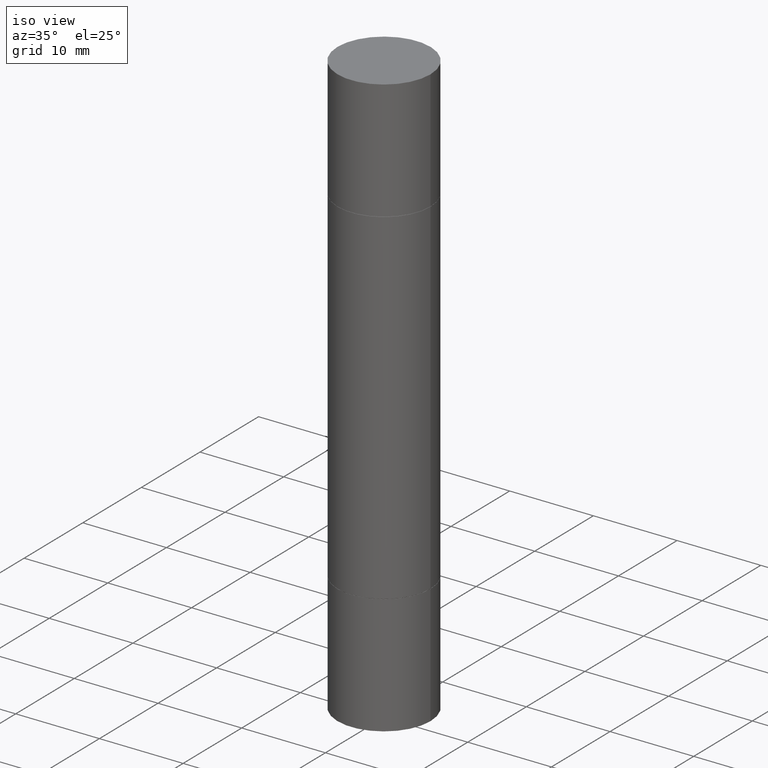
[diagram: clean part render]
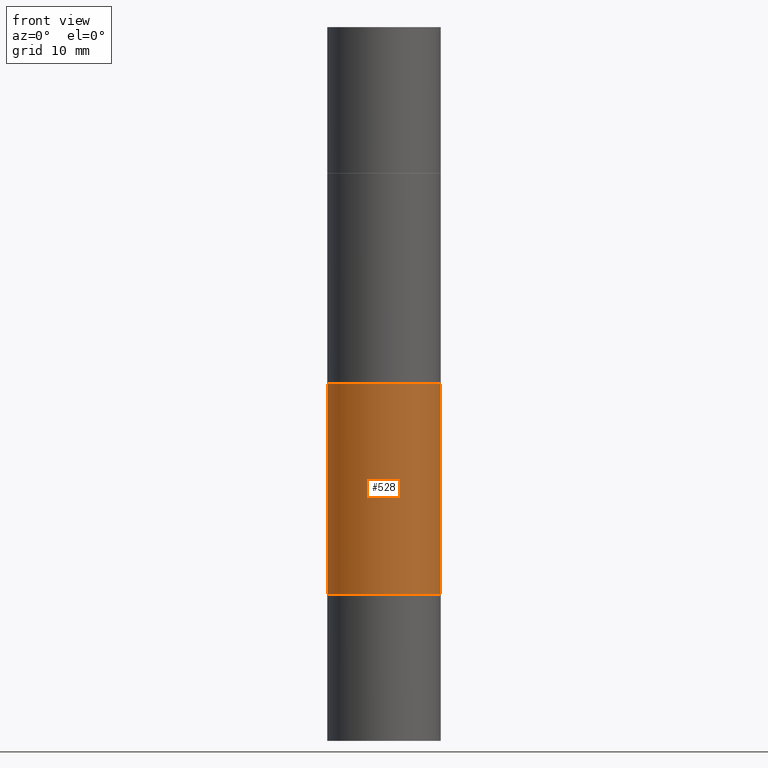
[diagram: tour spotlight — one face highlighted and labeled with its STEP entity id]
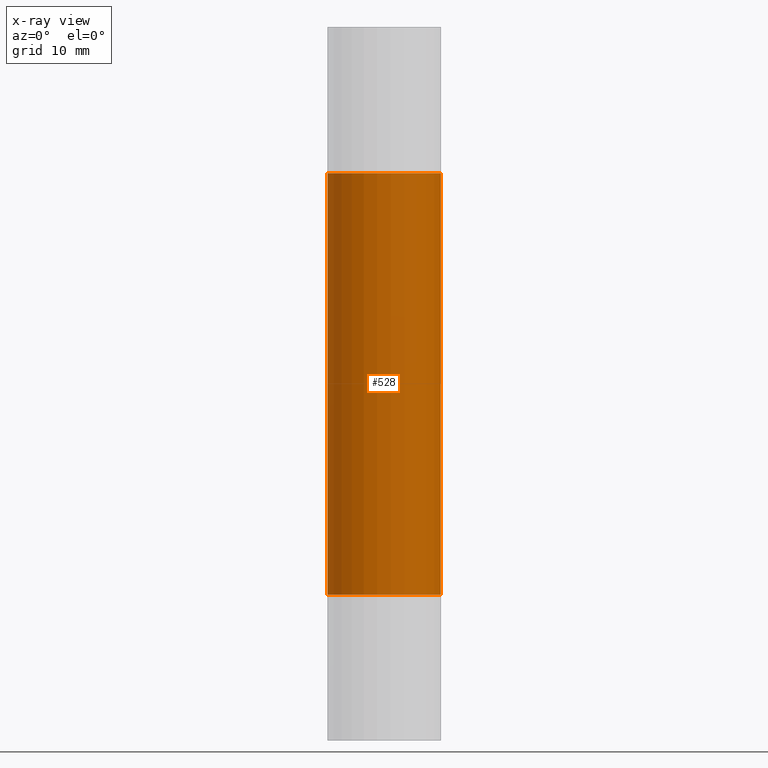
[diagram: x-ray of the same camera — body ghosted, this tour face saturated]
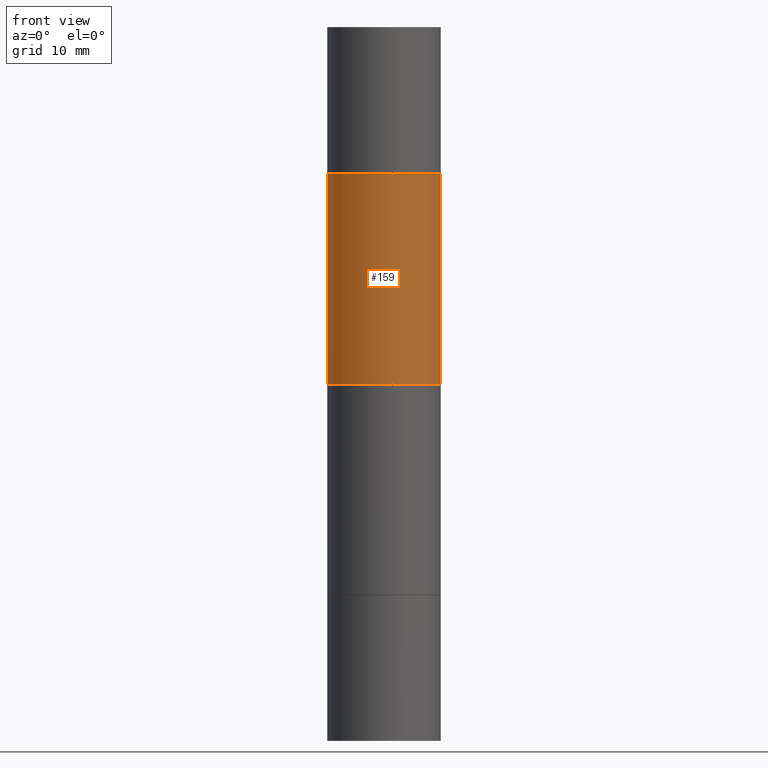
[diagram: tour spotlight — one face highlighted and labeled with its STEP entity id]
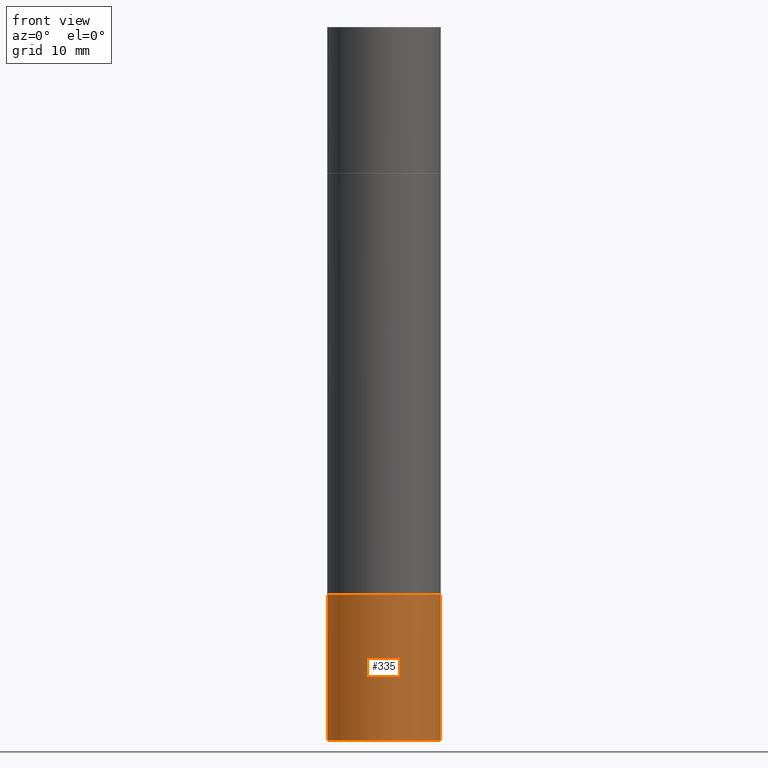
[diagram: tour spotlight — one face highlighted and labeled with its STEP entity id]
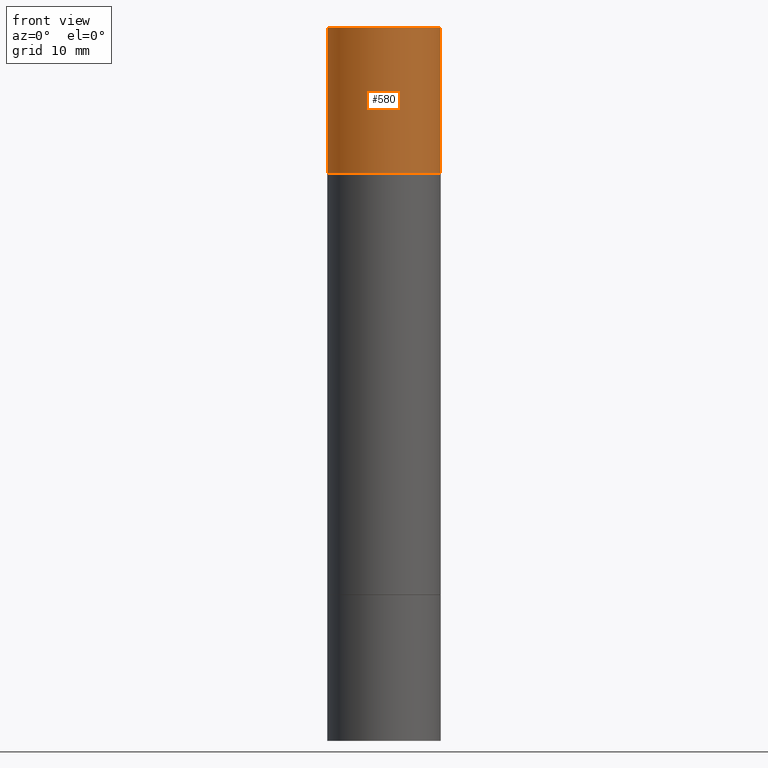
[diagram: tour spotlight — one face highlighted and labeled with its STEP entity id]
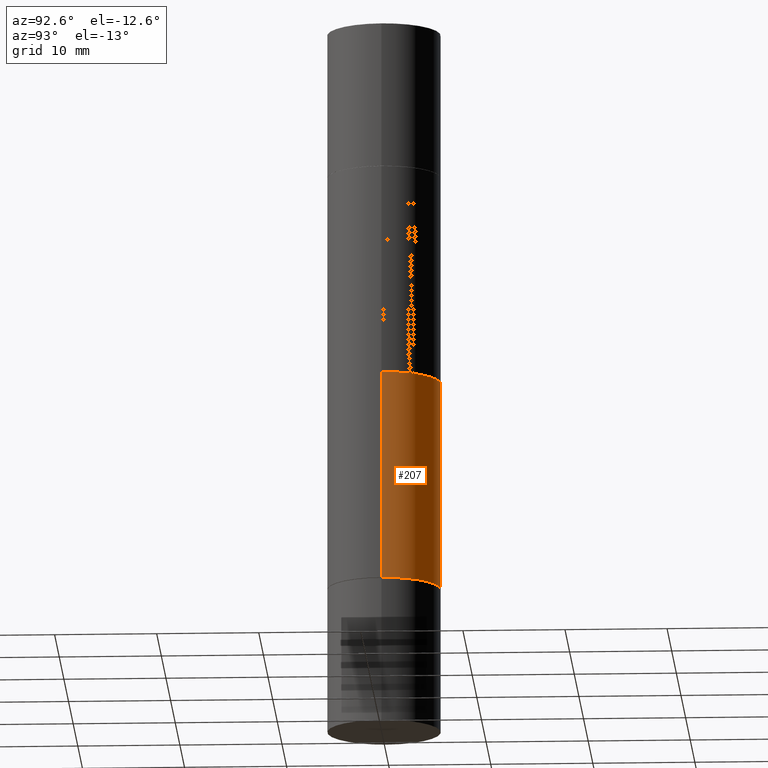
[diagram: tour spotlight — one face highlighted and labeled with its STEP entity id]
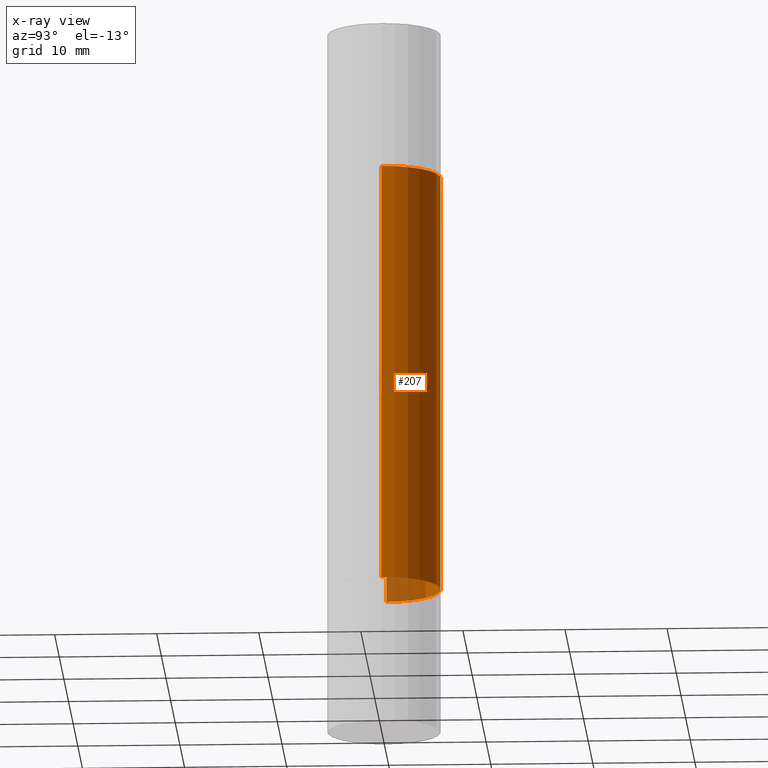
[diagram: x-ray of the same camera — body ghosted, this tour face saturated]
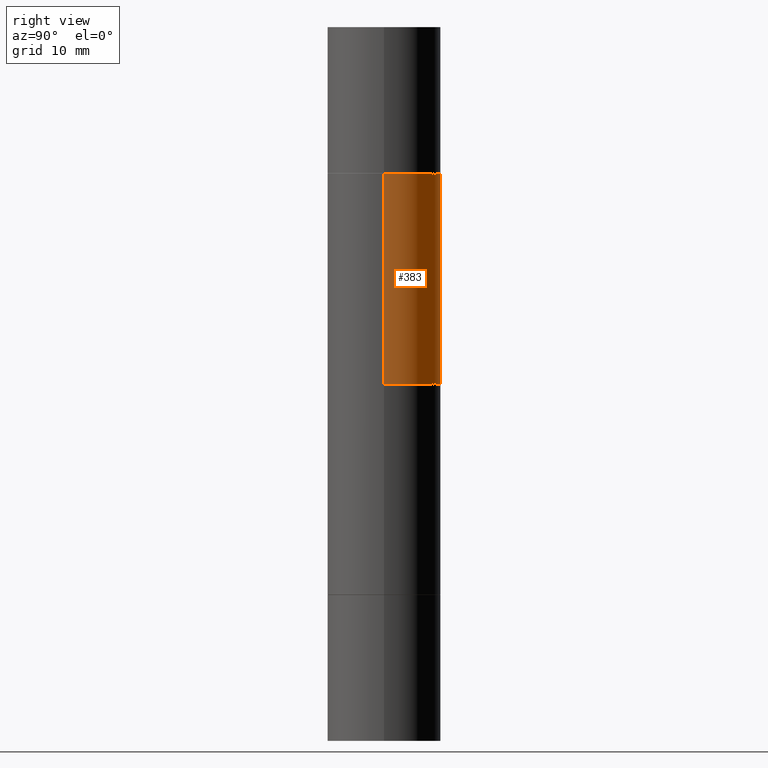
[diagram: tour spotlight — one face highlighted and labeled with its STEP entity id]
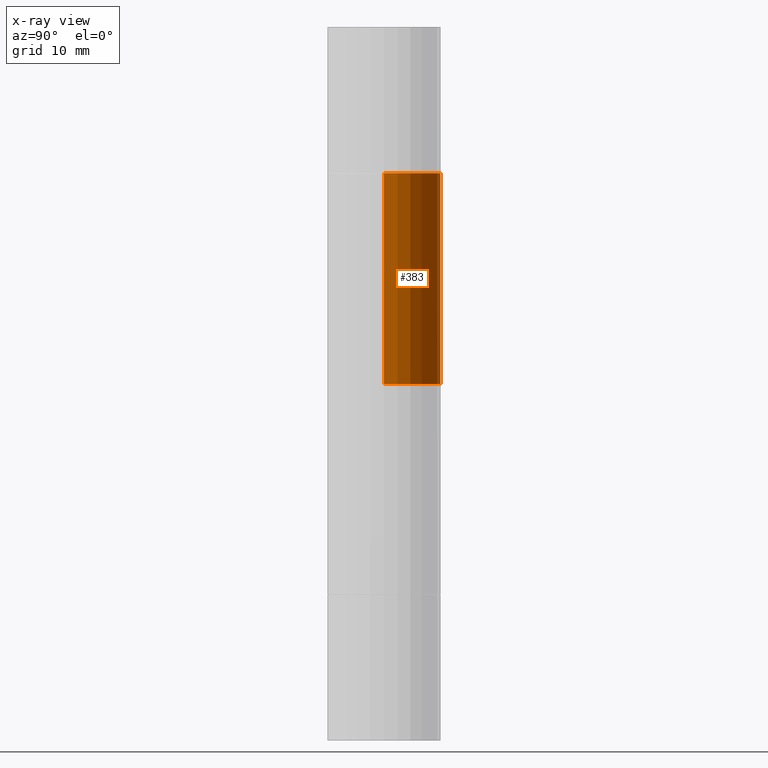
[diagram: x-ray of the same camera — body ghosted, this tour face saturated]
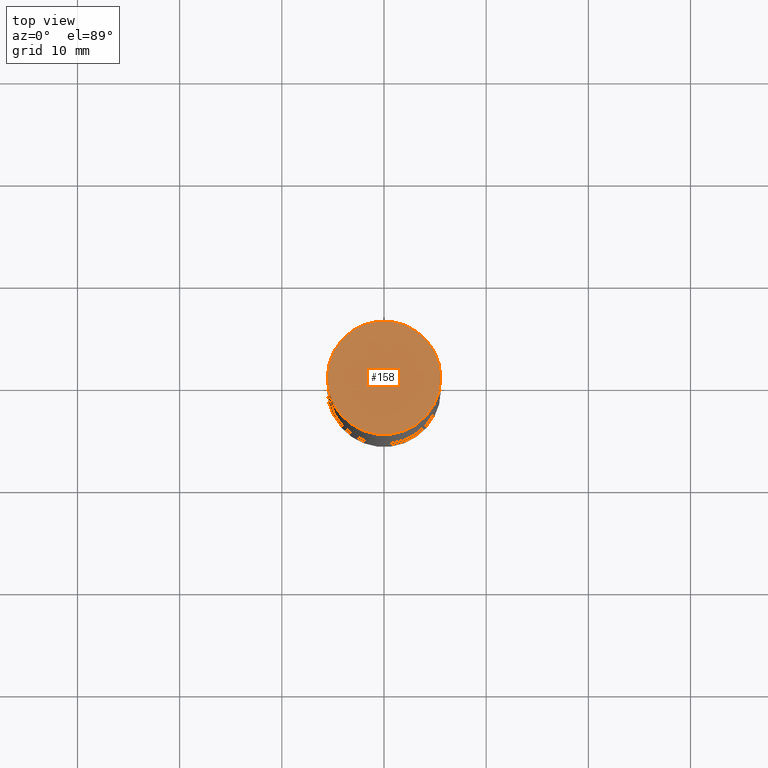
[diagram: tour spotlight — one face highlighted and labeled with its STEP entity id]
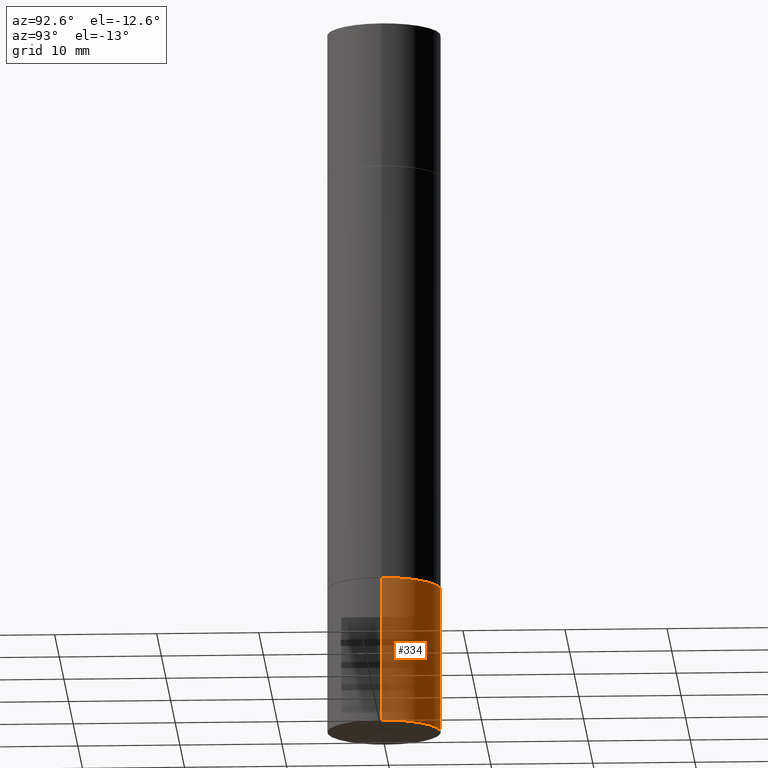
[diagram: tour spotlight — one face highlighted and labeled with its STEP entity id]
A machine part: a face-by-face anatomy tour. The part has 26 B-rep faces; the first image is the clean iso view, then the 8 largest visible faces are spotlighted one at a time (largest first), each with its STEP entity span.

Face 1 — front view, entity #528. An x-ray twin of the same camera follows (body ghosted, this face saturated) — the face is partly hidden behind the body. In plain terms, the highlighted cylindrical surface (partial cylindrical patch) has radius 5.5562 mm, axis along (-0, -0, -1).
Definition (entity closure, byte-faithful):
#17 = VERTEX_POINT ( 'NONE', #317 ) ;
#22 = VERTEX_POINT ( 'NONE', #476 ) ;
#27 = DIRECTION ( 'NONE',  ( 1.000000000000000000, -6.982962677686267499E-15, 0.000000000000000000 ) ) ;
#33 = VECTOR ( 'NONE', #253, 39.37007874015748143 ) ;
#37 = EDGE_CURVE ( 'NONE', #391, #645, #321, .T. ) ;
#46 = CARTESIAN_POINT ( 'NONE',  ( 0.2187499999999998612, -1.113103424253685260E-14, -2.749999999999999556 ) ) ;
#68 = CYLINDRICAL_SURFACE ( 'NONE', #74, 0.2187499999999998612 ) ;
#69 = CARTESIAN_POINT ( 'NONE',  ( -0.2187499999999998612, -8.102777219780461591E-15, -2.749999999999999556 ) ) ;
#74 = AXIS2_PLACEMENT_3D ( 'NONE', #495, #229, #27 ) ;
#83 = DIRECTION ( 'NONE',  ( -2.445468806185136877E-29, -3.492890411551753071E-15, -1.000000000000000000 ) ) ;
#91 = DIRECTION ( 'NONE',  ( -2.445468806185136597E-29, 3.491481338843145583E-15, 1.000000000000000000 ) ) ;
#118 = AXIS2_PLACEMENT_3D ( 'NONE', #568, #91, #514 ) ;
#136 = EDGE_CURVE ( 'NONE', #17, #22, #358, .T. ) ;
#141 = CARTESIAN_POINT ( 'NONE',  ( 5.348240279126892383E-29, -1.964559826729300003E-15, -0.5629999999999997229 ) ) ;
#162 = ORIENTED_EDGE ( 'NONE', *, *, #313, .T. ) ;
#172 = ORIENTED_EDGE ( 'NONE', *, *, #37, .F. ) ;
#195 = DIRECTION ( 'NONE',  ( 1.000000000000000000, -6.982962677686266711E-15, 0.000000000000000000 ) ) ;
#202 = CARTESIAN_POINT ( 'NONE',  ( 0.2187499999999999445, -3.492082912473170057E-15, -0.5629999999999997229 ) ) ;
#224 = LINE ( 'NONE', #69, #625 ) ;
#229 = DIRECTION ( 'NONE',  ( -2.445468806185136597E-29, -3.492890411551752677E-15, -1.000000000000000000 ) ) ;
#236 = EDGE_LOOP ( 'NONE', ( #172, #162, #536, #601 ) ) ;
#253 = DIRECTION ( 'NONE',  ( -2.445468806185136877E-29, -3.492890411551753071E-15, -1.000000000000000000 ) ) ;
#261 = AXIS2_PLACEMENT_3D ( 'NONE', #141, #365, #195 ) ;
#313 = EDGE_CURVE ( 'NONE', #391, #17, #224, .T. ) ;
#317 = CARTESIAN_POINT ( 'NONE',  ( -0.2187499999999999445, -3.300052903896800034E-15, -2.186999999999999833 ) ) ;
#321 = CIRCLE ( 'NONE', #261, 0.2187499999999999445 ) ;
#347 = FACE_OUTER_BOUND ( 'NONE', #236, .T. ) ;
#358 = CIRCLE ( 'NONE', #118, 0.2187499999999999445 ) ;
#365 = DIRECTION ( 'NONE',  ( 2.445468806185136597E-29, 3.492890411551752677E-15, 1.000000000000000000 ) ) ;
#391 = VERTEX_POINT ( 'NONE', #597 ) ;
#476 = CARTESIAN_POINT ( 'NONE',  ( 0.2187499999999999445, -9.163392773793829586E-15, -2.186999999999999833 ) ) ;
#495 = CARTESIAN_POINT ( 'NONE',  ( 0.000000000000000000, -9.603511156792982543E-15, -2.749999999999999556 ) ) ;
#514 = DIRECTION ( 'NONE',  ( 1.000000000000000000, -6.982962677686269077E-15, 0.000000000000000000 ) ) ;
#518 = LINE ( 'NONE', #46, #33 ) ;
#528 = ADVANCED_FACE ( 'NONE', ( #347 ), #68, .T. ) ;
#536 = ORIENTED_EDGE ( 'NONE', *, *, #136, .T. ) ;
#568 = CARTESIAN_POINT ( 'NONE',  ( 5.348240279126892383E-29, -7.635869688049957955E-15, -2.186999999999999833 ) ) ;
#597 = CARTESIAN_POINT ( 'NONE',  ( -0.2187499999999999445, -4.638258897167772766E-16, -0.5629999999999997229 ) ) ;
#601 = ORIENTED_EDGE ( 'NONE', *, *, #621, .F. ) ;
#621 = EDGE_CURVE ( 'NONE', #645, #22, #518, .T. ) ;
#625 = VECTOR ( 'NONE', #83, 39.37007874015748143 ) ;
#645 = VERTEX_POINT ( 'NONE', #202 ) ;

Face 2 — front view, entity #159. In plain terms, the highlighted cylindrical surface (partial cylindrical patch) has radius 5.5562 mm, axis along (-0, -0, -1).
Definition (entity closure, byte-faithful):
#9 = AXIS2_PLACEMENT_3D ( 'NONE', #461, #663, #385 ) ;
#23 = ORIENTED_EDGE ( 'NONE', *, *, #595, .T. ) ;
#30 = VERTEX_POINT ( 'NONE', #677 ) ;
#38 = EDGE_CURVE ( 'NONE', #491, #30, #623, .T. ) ;
#95 = CARTESIAN_POINT ( 'NONE',  ( -0.2187499999999998612, -1.881939396806789345E-15, -1.374999999999999778 ) ) ;
#150 = CARTESIAN_POINT ( 'NONE',  ( 5.348240279126892383E-29, -1.964559826729300003E-15, -0.5629999999999997229 ) ) ;
#159 = ADVANCED_FACE ( 'NONE', ( #161 ), #583, .T. ) ;
#161 = FACE_OUTER_BOUND ( 'NONE', #655, .T. ) ;
#192 = CARTESIAN_POINT ( 'NONE',  ( -0.2187499999999998612, -8.102777219780461591E-15, -2.749999999999999556 ) ) ;
#267 = DIRECTION ( 'NONE',  ( 1.000000000000000000, -6.982962677686267499E-15, 0.000000000000000000 ) ) ;
#306 = DIRECTION ( 'NONE',  ( -2.445468806185136877E-29, -3.492890411551753071E-15, -1.000000000000000000 ) ) ;
#309 = DIRECTION ( 'NONE',  ( 2.445468806185136597E-29, 3.492890411551752677E-15, 1.000000000000000000 ) ) ;
#310 = CIRCLE ( 'NONE', #9, 0.2187499999999998612 ) ;
#332 = VECTOR ( 'NONE', #306, 39.37007874015748143 ) ;
#353 = ORIENTED_EDGE ( 'NONE', *, *, #460, .F. ) ;
#380 = CARTESIAN_POINT ( 'NONE',  ( 0.000000000000000000, -9.603511156792982543E-15, -2.749999999999999556 ) ) ;
#385 = DIRECTION ( 'NONE',  ( 0.000000000000000000, 1.000000000000000000, -3.746534391310991923E-15 ) ) ;
#399 = ORIENTED_EDGE ( 'NONE', *, *, #622, .F. ) ;
#419 = CARTESIAN_POINT ( 'NONE',  ( 0.2187499999999998612, -1.113103424253685260E-14, -2.749999999999999556 ) ) ;
#452 = CARTESIAN_POINT ( 'NONE',  ( 0.2187499999999998612, -4.910196419563181534E-15, -1.374999999999999778 ) ) ;
#455 = AXIS2_PLACEMENT_3D ( 'NONE', #380, #634, #267 ) ;
#460 = EDGE_CURVE ( 'NONE', #551, #564, #310, .T. ) ;
#461 = CARTESIAN_POINT ( 'NONE',  ( 3.362519608504561700E-29, -4.800786840909324141E-15, -1.374999999999999778 ) ) ;
#472 = LINE ( 'NONE', #192, #332 ) ;
#491 = VERTEX_POINT ( 'NONE', #602 ) ;
#512 = VECTOR ( 'NONE', #616, 39.37007874015748143 ) ;
#517 = DIRECTION ( 'NONE',  ( 1.000000000000000000, -6.982962677686266711E-15, 0.000000000000000000 ) ) ;
#551 = VERTEX_POINT ( 'NONE', #452 ) ;
#564 = VERTEX_POINT ( 'NONE', #95 ) ;
#583 = CYLINDRICAL_SURFACE ( 'NONE', #455, 0.2187499999999998612 ) ;
#595 = EDGE_CURVE ( 'NONE', #491, #564, #472, .T. ) ;
#602 = CARTESIAN_POINT ( 'NONE',  ( -0.2187499999999999445, -4.638258897167772766E-16, -0.5629999999999997229 ) ) ;
#616 = DIRECTION ( 'NONE',  ( -2.445468806185136877E-29, -3.492890411551753071E-15, -1.000000000000000000 ) ) ;
#622 = EDGE_CURVE ( 'NONE', #30, #551, #675, .T. ) ;
#623 = CIRCLE ( 'NONE', #640, 0.2187499999999999445 ) ;
#634 = DIRECTION ( 'NONE',  ( -2.445468806185136597E-29, -3.492890411551752677E-15, -1.000000000000000000 ) ) ;
#640 = AXIS2_PLACEMENT_3D ( 'NONE', #150, #309, #517 ) ;
#655 = EDGE_LOOP ( 'NONE', ( #665, #23, #353, #399 ) ) ;
#663 = DIRECTION ( 'NONE',  ( -0.000000000000000000, -3.492185875197449130E-15, -1.000000000000000000 ) ) ;
#665 = ORIENTED_EDGE ( 'NONE', *, *, #38, .F. ) ;
#675 = LINE ( 'NONE', #419, #512 ) ;
#677 = CARTESIAN_POINT ( 'NONE',  ( 0.2187499999999999445, -3.492082912473170057E-15, -0.5629999999999997229 ) ) ;

Face 3 — front view, entity #335. In plain terms, the highlighted cylindrical surface (partial cylindrical patch) has radius 5.5562 mm, axis along (-0, 0, 1).
Definition (entity closure, byte-faithful):
#32 = CIRCLE ( 'NONE', #225, 0.2187500000000000000 ) ;
#34 = DIRECTION ( 'NONE',  ( -2.445468806185136597E-29, 3.491481338843145583E-15, 1.000000000000000000 ) ) ;
#67 = ORIENTED_EDGE ( 'NONE', *, *, #579, .F. ) ;
#82 = VERTEX_POINT ( 'NONE', #519 ) ;
#84 = EDGE_LOOP ( 'NONE', ( #67, #661, #338, #142 ) ) ;
#142 = ORIENTED_EDGE ( 'NONE', *, *, #222, .F. ) ;
#153 = CIRCLE ( 'NONE', #510, 0.2187500000000000000 ) ;
#171 = FACE_OUTER_BOUND ( 'NONE', #84, .T. ) ;
#175 = DIRECTION ( 'NONE',  ( 1.000000000000000000, -6.982962677686262766E-15, 0.000000000000000000 ) ) ;
#183 = VECTOR ( 'NONE', #430, 39.37007874015748143 ) ;
#205 = EDGE_CURVE ( 'NONE', #300, #490, #586, .T. ) ;
#222 = EDGE_CURVE ( 'NONE', #82, #490, #153, .T. ) ;
#225 = AXIS2_PLACEMENT_3D ( 'NONE', #454, #340, #175 ) ;
#279 = CARTESIAN_POINT ( 'NONE',  ( 0.2187500000000000000, -9.166884255132671016E-15, -2.187999999999999723 ) ) ;
#300 = VERTEX_POINT ( 'NONE', #504 ) ;
#311 = CARTESIAN_POINT ( 'NONE',  ( -0.2187500000000000000, 1.554312234475219157E-15, -1.076017050993260622E-29 ) ) ;
#326 = DIRECTION ( 'NONE',  ( -2.445468806185136597E-29, 3.491481338843145583E-15, 1.000000000000000000 ) ) ;
#333 = EDGE_CURVE ( 'NONE', #448, #300, #32, .T. ) ;
#335 = ADVANCED_FACE ( 'NONE', ( #171 ), #393, .T. ) ;
#338 = ORIENTED_EDGE ( 'NONE', *, *, #205, .T. ) ;
#340 = DIRECTION ( 'NONE',  ( -2.445468806185136597E-29, 3.491481338843145583E-15, 1.000000000000000000 ) ) ;
#354 = DIRECTION ( 'NONE',  ( -2.445468806185136877E-29, 3.491481338843145188E-15, 1.000000000000000000 ) ) ;
#393 = CYLINDRICAL_SURFACE ( 'NONE', #679, 0.2187500000000000000 ) ;
#430 = DIRECTION ( 'NONE',  ( -2.445468806185136877E-29, 3.491481338843145188E-15, 1.000000000000000000 ) ) ;
#439 = DIRECTION ( 'NONE',  ( 1.000000000000000000, -6.982962677686266711E-15, 4.876176775795935232E-29 ) ) ;
#448 = VERTEX_POINT ( 'NONE', #557 ) ;
#454 = CARTESIAN_POINT ( 'NONE',  ( 6.725039217009124520E-29, -9.601573681818649859E-15, -2.750000000000000000 ) ) ;
#471 = VECTOR ( 'NONE', #354, 39.37007874015748143 ) ;
#490 = VERTEX_POINT ( 'NONE', #279 ) ;
#504 = CARTESIAN_POINT ( 'NONE',  ( 0.2187500000000000000, -1.112909676756251991E-14, -2.750000000000000000 ) ) ;
#510 = AXIS2_PLACEMENT_3D ( 'NONE', #539, #326, #630 ) ;
#519 = CARTESIAN_POINT ( 'NONE',  ( -0.2187500000000000000, -7.066155191128507043E-15, -2.187999999999999723 ) ) ;
#521 = LINE ( 'NONE', #311, #471 ) ;
#539 = CARTESIAN_POINT ( 'NONE',  ( 5.350685747933077986E-29, -7.639361169388800962E-15, -2.187999999999999723 ) ) ;
#557 = CARTESIAN_POINT ( 'NONE',  ( -0.2187500000000000000, -7.066155191128507043E-15, -2.750000000000000000 ) ) ;
#579 = EDGE_CURVE ( 'NONE', #448, #82, #521, .T. ) ;
#586 = LINE ( 'NONE', #632, #183 ) ;
#600 = CARTESIAN_POINT ( 'NONE',  ( 0.000000000000000000, 0.000000000000000000, 0.000000000000000000 ) ) ;
#630 = DIRECTION ( 'NONE',  ( 1.000000000000000000, -6.982962677686262766E-15, 0.000000000000000000 ) ) ;
#632 = CARTESIAN_POINT ( 'NONE',  ( 0.2187500000000000000, -1.527523085743870843E-15, 1.066663669705360885E-29 ) ) ;
#661 = ORIENTED_EDGE ( 'NONE', *, *, #333, .T. ) ;
#679 = AXIS2_PLACEMENT_3D ( 'NONE', #600, #34, #439 ) ;

Face 4 — front view, entity #580. In plain terms, the highlighted cylindrical surface (partial cylindrical patch) has radius 5.5562 mm, axis along (-0, -0, -1).
Definition (entity closure, byte-faithful):
#16 = CARTESIAN_POINT ( 'NONE',  ( -0.2187500000000000000, -8.102777219780460014E-15, -2.749999999999999556 ) ) ;
#20 = DIRECTION ( 'NONE',  ( 1.000000000000000000, -6.982962677686267499E-15, 0.000000000000000000 ) ) ;
#35 = ORIENTED_EDGE ( 'NONE', *, *, #382, .T. ) ;
#44 = DIRECTION ( 'NONE',  ( 2.445468806185136597E-29, 3.492890411551752677E-15, 1.000000000000000000 ) ) ;
#55 = CARTESIAN_POINT ( 'NONE',  ( 0.2187500000000000000, -3.488590022061618704E-15, -0.5619999999999996110 ) ) ;
#63 = DIRECTION ( 'NONE',  ( 2.445468806185136597E-29, 3.492890411551752677E-15, 1.000000000000000000 ) ) ;
#85 = EDGE_CURVE ( 'NONE', #232, #184, #223, .T. ) ;
#86 = EDGE_CURVE ( 'NONE', #184, #289, #473, .T. ) ;
#93 = CARTESIAN_POINT ( 'NONE',  ( -0.2187500000000000000, 5.211692063408171100E-16, -0.5619999999999996110 ) ) ;
#140 = FACE_OUTER_BOUND ( 'NONE', #547, .T. ) ;
#179 = CARTESIAN_POINT ( 'NONE',  ( 5.350685747933077986E-29, -1.961066936317747467E-15, -0.5619999999999996110 ) ) ;
#184 = VERTEX_POINT ( 'NONE', #483 ) ;
#196 = AXIS2_PLACEMENT_3D ( 'NONE', #624, #44, #252 ) ;
#197 = VECTOR ( 'NONE', #343, 39.37007874015748143 ) ;
#201 = DIRECTION ( 'NONE',  ( -2.445468806185136877E-29, -3.492890411551753071E-15, -1.000000000000000000 ) ) ;
#223 = CIRCLE ( 'NONE', #196, 0.2187500000000000000 ) ;
#232 = VERTEX_POINT ( 'NONE', #629 ) ;
#251 = CYLINDRICAL_SURFACE ( 'NONE', #531, 0.2187500000000000000 ) ;
#252 = DIRECTION ( 'NONE',  ( 1.000000000000000000, -6.982962677686266711E-15, 0.000000000000000000 ) ) ;
#276 = ORIENTED_EDGE ( 'NONE', *, *, #527, .T. ) ;
#289 = VERTEX_POINT ( 'NONE', #55 ) ;
#303 = CIRCLE ( 'NONE', #658, 0.2187500000000000000 ) ;
#343 = DIRECTION ( 'NONE',  ( -2.445468806185136877E-29, -3.492890411551753071E-15, -1.000000000000000000 ) ) ;
#366 = DIRECTION ( 'NONE',  ( -2.445468806185136597E-29, -3.492890411551752677E-15, -1.000000000000000000 ) ) ;
#378 = VECTOR ( 'NONE', #201, 39.37007874015748143 ) ;
#382 = EDGE_CURVE ( 'NONE', #232, #649, #401, .T. ) ;
#401 = LINE ( 'NONE', #16, #197 ) ;
#473 = LINE ( 'NONE', #674, #378 ) ;
#475 = DIRECTION ( 'NONE',  ( 1.000000000000000000, -6.982962677686262766E-15, 0.000000000000000000 ) ) ;
#483 = CARTESIAN_POINT ( 'NONE',  ( 0.2187500000000000000, -1.525585610769535201E-15, 5.463695987328526437E-16 ) ) ;
#516 = CARTESIAN_POINT ( 'NONE',  ( 0.000000000000000000, -9.603511156792982543E-15, -2.749999999999999556 ) ) ;
#527 = EDGE_CURVE ( 'NONE', #649, #289, #303, .T. ) ;
#531 = AXIS2_PLACEMENT_3D ( 'NONE', #516, #366, #475 ) ;
#547 = EDGE_LOOP ( 'NONE', ( #578, #35, #276, #612 ) ) ;
#578 = ORIENTED_EDGE ( 'NONE', *, *, #85, .F. ) ;
#580 = ADVANCED_FACE ( 'NONE', ( #140 ), #251, .T. ) ;
#612 = ORIENTED_EDGE ( 'NONE', *, *, #86, .F. ) ;
#624 = CARTESIAN_POINT ( 'NONE',  ( 6.725039217009124520E-29, 1.937474974335603146E-18, 5.463695987328526437E-16 ) ) ;
#629 = CARTESIAN_POINT ( 'NONE',  ( -0.2187500000000000000, 5.211692063408169128E-16, 5.463695987328561936E-16 ) ) ;
#649 = VERTEX_POINT ( 'NONE', #93 ) ;
#658 = AXIS2_PLACEMENT_3D ( 'NONE', #179, #63, #20 ) ;
#674 = CARTESIAN_POINT ( 'NONE',  ( 0.2187500000000000000, -1.113103424253685260E-14, -2.749999999999999556 ) ) ;

Face 5 — auxiliary view, entity #207. An x-ray twin of the same camera follows (body ghosted, this face saturated) — the face is partly hidden behind the body. In plain terms, the highlighted cylindrical surface (partial cylindrical patch) has radius 5.5562 mm, axis along (-0, -0, -1).
Definition (entity closure, byte-faithful):
#17 = VERTEX_POINT ( 'NONE', #317 ) ;
#22 = VERTEX_POINT ( 'NONE', #476 ) ;
#33 = VECTOR ( 'NONE', #253, 39.37007874015748143 ) ;
#46 = CARTESIAN_POINT ( 'NONE',  ( 0.2187499999999998612, -1.113103424253685260E-14, -2.749999999999999556 ) ) ;
#58 = DIRECTION ( 'NONE',  ( -2.445468806185136597E-29, -3.492890411551752677E-15, -1.000000000000000000 ) ) ;
#69 = CARTESIAN_POINT ( 'NONE',  ( -0.2187499999999998612, -8.102777219780461591E-15, -2.749999999999999556 ) ) ;
#83 = DIRECTION ( 'NONE',  ( -2.445468806185136877E-29, -3.492890411551753071E-15, -1.000000000000000000 ) ) ;
#111 = DIRECTION ( 'NONE',  ( 1.000000000000000000, -6.982962677686267499E-15, 0.000000000000000000 ) ) ;
#125 = ORIENTED_EDGE ( 'NONE', *, *, #135, .F. ) ;
#126 = DIRECTION ( 'NONE',  ( 1.000000000000000000, -6.982962677686269077E-15, 0.000000000000000000 ) ) ;
#135 = EDGE_CURVE ( 'NONE', #645, #391, #206, .T. ) ;
#202 = CARTESIAN_POINT ( 'NONE',  ( 0.2187499999999999445, -3.492082912473170057E-15, -0.5629999999999997229 ) ) ;
#206 = CIRCLE ( 'NONE', #589, 0.2187499999999999445 ) ;
#207 = ADVANCED_FACE ( 'NONE', ( #273 ), #219, .T. ) ;
#209 = CARTESIAN_POINT ( 'NONE',  ( 5.348240279126892383E-29, -1.964559826729300003E-15, -0.5629999999999997229 ) ) ;
#219 = CYLINDRICAL_SURFACE ( 'NONE', #397, 0.2187499999999998612 ) ;
#224 = LINE ( 'NONE', #69, #625 ) ;
#253 = DIRECTION ( 'NONE',  ( -2.445468806185136877E-29, -3.492890411551753071E-15, -1.000000000000000000 ) ) ;
#272 = CIRCLE ( 'NONE', #440, 0.2187499999999999445 ) ;
#273 = FACE_OUTER_BOUND ( 'NONE', #346, .T. ) ;
#313 = EDGE_CURVE ( 'NONE', #391, #17, #224, .T. ) ;
#317 = CARTESIAN_POINT ( 'NONE',  ( -0.2187499999999999445, -3.300052903896800034E-15, -2.186999999999999833 ) ) ;
#329 = CARTESIAN_POINT ( 'NONE',  ( 0.000000000000000000, -9.603511156792982543E-15, -2.749999999999999556 ) ) ;
#346 = EDGE_LOOP ( 'NONE', ( #555, #125, #398, #651 ) ) ;
#357 = DIRECTION ( 'NONE',  ( 1.000000000000000000, -6.982962677686266711E-15, 0.000000000000000000 ) ) ;
#360 = EDGE_CURVE ( 'NONE', #22, #17, #272, .T. ) ;
#388 = DIRECTION ( 'NONE',  ( -2.445468806185136597E-29, 3.491481338843145583E-15, 1.000000000000000000 ) ) ;
#391 = VERTEX_POINT ( 'NONE', #597 ) ;
#397 = AXIS2_PLACEMENT_3D ( 'NONE', #329, #58, #111 ) ;
#398 = ORIENTED_EDGE ( 'NONE', *, *, #621, .T. ) ;
#426 = DIRECTION ( 'NONE',  ( 2.445468806185136597E-29, 3.492890411551752677E-15, 1.000000000000000000 ) ) ;
#440 = AXIS2_PLACEMENT_3D ( 'NONE', #659, #388, #126 ) ;
#476 = CARTESIAN_POINT ( 'NONE',  ( 0.2187499999999999445, -9.163392773793829586E-15, -2.186999999999999833 ) ) ;
#518 = LINE ( 'NONE', #46, #33 ) ;
#555 = ORIENTED_EDGE ( 'NONE', *, *, #313, .F. ) ;
#589 = AXIS2_PLACEMENT_3D ( 'NONE', #209, #426, #357 ) ;
#597 = CARTESIAN_POINT ( 'NONE',  ( -0.2187499999999999445, -4.638258897167772766E-16, -0.5629999999999997229 ) ) ;
#621 = EDGE_CURVE ( 'NONE', #645, #22, #518, .T. ) ;
#625 = VECTOR ( 'NONE', #83, 39.37007874015748143 ) ;
#645 = VERTEX_POINT ( 'NONE', #202 ) ;
#651 = ORIENTED_EDGE ( 'NONE', *, *, #360, .T. ) ;
#659 = CARTESIAN_POINT ( 'NONE',  ( 5.348240279126892383E-29, -7.635869688049957955E-15, -2.186999999999999833 ) ) ;

Face 6 — right view, entity #383. An x-ray twin of the same camera follows (body ghosted, this face saturated) — the face is partly hidden behind the body. In plain terms, the highlighted cylindrical surface (partial cylindrical patch) has radius 5.5562 mm, axis along (-0, -0, -1).
Definition (entity closure, byte-faithful):
#24 = CYLINDRICAL_SURFACE ( 'NONE', #553, 0.2187499999999998612 ) ;
#30 = VERTEX_POINT ( 'NONE', #677 ) ;
#49 = DIRECTION ( 'NONE',  ( -0.000000000000000000, -3.492185875197449130E-15, -1.000000000000000000 ) ) ;
#71 = AXIS2_PLACEMENT_3D ( 'NONE', #421, #49, #367 ) ;
#89 = EDGE_CURVE ( 'NONE', #564, #551, #368, .T. ) ;
#95 = CARTESIAN_POINT ( 'NONE',  ( -0.2187499999999998612, -1.881939396806789345E-15, -1.374999999999999778 ) ) ;
#122 = EDGE_LOOP ( 'NONE', ( #177, #403, #511, #607 ) ) ;
#123 = DIRECTION ( 'NONE',  ( -2.445468806185136597E-29, -3.492890411551752677E-15, -1.000000000000000000 ) ) ;
#177 = ORIENTED_EDGE ( 'NONE', *, *, #595, .F. ) ;
#192 = CARTESIAN_POINT ( 'NONE',  ( -0.2187499999999998612, -8.102777219780461591E-15, -2.749999999999999556 ) ) ;
#299 = CARTESIAN_POINT ( 'NONE',  ( 0.000000000000000000, -9.603511156792982543E-15, -2.749999999999999556 ) ) ;
#306 = DIRECTION ( 'NONE',  ( -2.445468806185136877E-29, -3.492890411551753071E-15, -1.000000000000000000 ) ) ;
#322 = CIRCLE ( 'NONE', #415, 0.2187499999999999445 ) ;
#332 = VECTOR ( 'NONE', #306, 39.37007874015748143 ) ;
#348 = DIRECTION ( 'NONE',  ( 1.000000000000000000, -6.982962677686267499E-15, 0.000000000000000000 ) ) ;
#367 = DIRECTION ( 'NONE',  ( 0.000000000000000000, 1.000000000000000000, -3.746534391310991923E-15 ) ) ;
#368 = CIRCLE ( 'NONE', #71, 0.2187499999999998612 ) ;
#383 = ADVANCED_FACE ( 'NONE', ( #443 ), #24, .T. ) ;
#403 = ORIENTED_EDGE ( 'NONE', *, *, #407, .F. ) ;
#407 = EDGE_CURVE ( 'NONE', #30, #491, #322, .T. ) ;
#415 = AXIS2_PLACEMENT_3D ( 'NONE', #446, #497, #554 ) ;
#419 = CARTESIAN_POINT ( 'NONE',  ( 0.2187499999999998612, -1.113103424253685260E-14, -2.749999999999999556 ) ) ;
#421 = CARTESIAN_POINT ( 'NONE',  ( 3.362519608504561700E-29, -4.800786840909324141E-15, -1.374999999999999778 ) ) ;
#443 = FACE_OUTER_BOUND ( 'NONE', #122, .T. ) ;
#446 = CARTESIAN_POINT ( 'NONE',  ( 5.348240279126892383E-29, -1.964559826729300003E-15, -0.5629999999999997229 ) ) ;
#452 = CARTESIAN_POINT ( 'NONE',  ( 0.2187499999999998612, -4.910196419563181534E-15, -1.374999999999999778 ) ) ;
#472 = LINE ( 'NONE', #192, #332 ) ;
#491 = VERTEX_POINT ( 'NONE', #602 ) ;
#497 = DIRECTION ( 'NONE',  ( 2.445468806185136597E-29, 3.492890411551752677E-15, 1.000000000000000000 ) ) ;
#511 = ORIENTED_EDGE ( 'NONE', *, *, #622, .T. ) ;
#512 = VECTOR ( 'NONE', #616, 39.37007874015748143 ) ;
#551 = VERTEX_POINT ( 'NONE', #452 ) ;
#553 = AXIS2_PLACEMENT_3D ( 'NONE', #299, #123, #348 ) ;
#554 = DIRECTION ( 'NONE',  ( 1.000000000000000000, -6.982962677686266711E-15, 0.000000000000000000 ) ) ;
#564 = VERTEX_POINT ( 'NONE', #95 ) ;
#595 = EDGE_CURVE ( 'NONE', #491, #564, #472, .T. ) ;
#602 = CARTESIAN_POINT ( 'NONE',  ( -0.2187499999999999445, -4.638258897167772766E-16, -0.5629999999999997229 ) ) ;
#607 = ORIENTED_EDGE ( 'NONE', *, *, #89, .F. ) ;
#616 = DIRECTION ( 'NONE',  ( -2.445468806185136877E-29, -3.492890411551753071E-15, -1.000000000000000000 ) ) ;
#622 = EDGE_CURVE ( 'NONE', #30, #551, #675, .T. ) ;
#675 = LINE ( 'NONE', #419, #512 ) ;
#677 = CARTESIAN_POINT ( 'NONE',  ( 0.2187499999999999445, -3.492082912473170057E-15, -0.5629999999999997229 ) ) ;

Face 7 — top view, entity #158. In plain terms, the highlighted planar face has unit normal (0, 0, 1).
Definition (entity closure, byte-faithful):
#5 = PLANE ( 'NONE',  #330 ) ;
#7 = FACE_OUTER_BOUND ( 'NONE', #466, .T. ) ;
#44 = DIRECTION ( 'NONE',  ( 2.445468806185136597E-29, 3.492890411551752677E-15, 1.000000000000000000 ) ) ;
#53 = DIRECTION ( 'NONE',  ( -1.000000000000000000, 6.982962677686265922E-15, -9.839502134516470631E-33 ) ) ;
#85 = EDGE_CURVE ( 'NONE', #232, #184, #223, .T. ) ;
#113 = DIRECTION ( 'NONE',  ( 2.438088387897959769E-29, 3.492890411551753071E-15, 1.000000000000000000 ) ) ;
#131 = ORIENTED_EDGE ( 'NONE', *, *, #148, .T. ) ;
#148 = EDGE_CURVE ( 'NONE', #184, #232, #671, .T. ) ;
#158 = ADVANCED_FACE ( 'NONE', ( #7 ), #5, .T. ) ;
#184 = VERTEX_POINT ( 'NONE', #483 ) ;
#196 = AXIS2_PLACEMENT_3D ( 'NONE', #624, #44, #252 ) ;
#223 = CIRCLE ( 'NONE', #196, 0.2187500000000000000 ) ;
#232 = VERTEX_POINT ( 'NONE', #629 ) ;
#252 = DIRECTION ( 'NONE',  ( 1.000000000000000000, -6.982962677686266711E-15, 0.000000000000000000 ) ) ;
#264 = CARTESIAN_POINT ( 'NONE',  ( 6.725039217009124520E-29, 1.937474974335603146E-18, 5.463695987328526437E-16 ) ) ;
#330 = AXIS2_PLACEMENT_3D ( 'NONE', #384, #113, #53 ) ;
#384 = CARTESIAN_POINT ( 'NONE',  ( 1.527523085743937699E-15, 0.2187500000000000000, -5.463695987328526437E-16 ) ) ;
#386 = AXIS2_PLACEMENT_3D ( 'NONE', #264, #535, #436 ) ;
#408 = ORIENTED_EDGE ( 'NONE', *, *, #85, .T. ) ;
#436 = DIRECTION ( 'NONE',  ( 1.000000000000000000, -6.982962677686266711E-15, 0.000000000000000000 ) ) ;
#466 = EDGE_LOOP ( 'NONE', ( #131, #408 ) ) ;
#483 = CARTESIAN_POINT ( 'NONE',  ( 0.2187500000000000000, -1.525585610769535201E-15, 5.463695987328526437E-16 ) ) ;
#535 = DIRECTION ( 'NONE',  ( 2.445468806185136597E-29, 3.492890411551752677E-15, 1.000000000000000000 ) ) ;
#624 = CARTESIAN_POINT ( 'NONE',  ( 6.725039217009124520E-29, 1.937474974335603146E-18, 5.463695987328526437E-16 ) ) ;
#629 = CARTESIAN_POINT ( 'NONE',  ( -0.2187500000000000000, 5.211692063408169128E-16, 5.463695987328561936E-16 ) ) ;
#671 = CIRCLE ( 'NONE', #386, 0.2187500000000000000 ) ;

Face 8 — auxiliary view, entity #334. In plain terms, the highlighted cylindrical surface (partial cylindrical patch) has radius 5.5562 mm, axis along (-0, 0, 1).
Definition (entity closure, byte-faithful):
#36 = ORIENTED_EDGE ( 'NONE', *, *, #579, .T. ) ;
#59 = DIRECTION ( 'NONE',  ( -2.445468806185136597E-29, 3.491481338843145583E-15, 1.000000000000000000 ) ) ;
#61 = AXIS2_PLACEMENT_3D ( 'NONE', #275, #59, #376 ) ;
#82 = VERTEX_POINT ( 'NONE', #519 ) ;
#128 = CIRCLE ( 'NONE', #61, 0.2187500000000000000 ) ;
#133 = DIRECTION ( 'NONE',  ( 1.000000000000000000, -6.982962677686262766E-15, 0.000000000000000000 ) ) ;
#146 = AXIS2_PLACEMENT_3D ( 'NONE', #590, #449, #133 ) ;
#160 = EDGE_CURVE ( 'NONE', #490, #82, #128, .T. ) ;
#165 = CIRCLE ( 'NONE', #146, 0.2187500000000000000 ) ;
#169 = DIRECTION ( 'NONE',  ( -2.445468806185136597E-29, 3.491481338843145583E-15, 1.000000000000000000 ) ) ;
#183 = VECTOR ( 'NONE', #430, 39.37007874015748143 ) ;
#205 = EDGE_CURVE ( 'NONE', #300, #490, #586, .T. ) ;
#231 = EDGE_LOOP ( 'NONE', ( #610, #36, #463, #451 ) ) ;
#275 = CARTESIAN_POINT ( 'NONE',  ( 5.350685747933077986E-29, -7.639361169388800962E-15, -2.187999999999999723 ) ) ;
#279 = CARTESIAN_POINT ( 'NONE',  ( 0.2187500000000000000, -9.166884255132671016E-15, -2.187999999999999723 ) ) ;
#284 = CARTESIAN_POINT ( 'NONE',  ( 0.000000000000000000, 0.000000000000000000, 0.000000000000000000 ) ) ;
#300 = VERTEX_POINT ( 'NONE', #504 ) ;
#311 = CARTESIAN_POINT ( 'NONE',  ( -0.2187500000000000000, 1.554312234475219157E-15, -1.076017050993260622E-29 ) ) ;
#334 = ADVANCED_FACE ( 'NONE', ( #546 ), #501, .T. ) ;
#354 = DIRECTION ( 'NONE',  ( -2.445468806185136877E-29, 3.491481338843145188E-15, 1.000000000000000000 ) ) ;
#376 = DIRECTION ( 'NONE',  ( 1.000000000000000000, -6.982962677686262766E-15, 0.000000000000000000 ) ) ;
#430 = DIRECTION ( 'NONE',  ( -2.445468806185136877E-29, 3.491481338843145188E-15, 1.000000000000000000 ) ) ;
#448 = VERTEX_POINT ( 'NONE', #557 ) ;
#449 = DIRECTION ( 'NONE',  ( -2.445468806185136597E-29, 3.491481338843145583E-15, 1.000000000000000000 ) ) ;
#451 = ORIENTED_EDGE ( 'NONE', *, *, #205, .F. ) ;
#463 = ORIENTED_EDGE ( 'NONE', *, *, #160, .F. ) ;
#471 = VECTOR ( 'NONE', #354, 39.37007874015748143 ) ;
#490 = VERTEX_POINT ( 'NONE', #279 ) ;
#493 = DIRECTION ( 'NONE',  ( 1.000000000000000000, -6.982962677686266711E-15, 4.876176775795935232E-29 ) ) ;
#496 = AXIS2_PLACEMENT_3D ( 'NONE', #284, #169, #493 ) ;
#501 = CYLINDRICAL_SURFACE ( 'NONE', #496, 0.2187500000000000000 ) ;
#504 = CARTESIAN_POINT ( 'NONE',  ( 0.2187500000000000000, -1.112909676756251991E-14, -2.750000000000000000 ) ) ;
#519 = CARTESIAN_POINT ( 'NONE',  ( -0.2187500000000000000, -7.066155191128507043E-15, -2.187999999999999723 ) ) ;
#521 = LINE ( 'NONE', #311, #471 ) ;
#526 = EDGE_CURVE ( 'NONE', #300, #448, #165, .T. ) ;
#546 = FACE_OUTER_BOUND ( 'NONE', #231, .T. ) ;
#557 = CARTESIAN_POINT ( 'NONE',  ( -0.2187500000000000000, -7.066155191128507043E-15, -2.750000000000000000 ) ) ;
#579 = EDGE_CURVE ( 'NONE', #448, #82, #521, .T. ) ;
#586 = LINE ( 'NONE', #632, #183 ) ;
#590 = CARTESIAN_POINT ( 'NONE',  ( 6.725039217009124520E-29, -9.601573681818649859E-15, -2.750000000000000000 ) ) ;
#610 = ORIENTED_EDGE ( 'NONE', *, *, #526, .T. ) ;
#632 = CARTESIAN_POINT ( 'NONE',  ( 0.2187500000000000000, -1.527523085743870843E-15, 1.066663669705360885E-29 ) ) ;